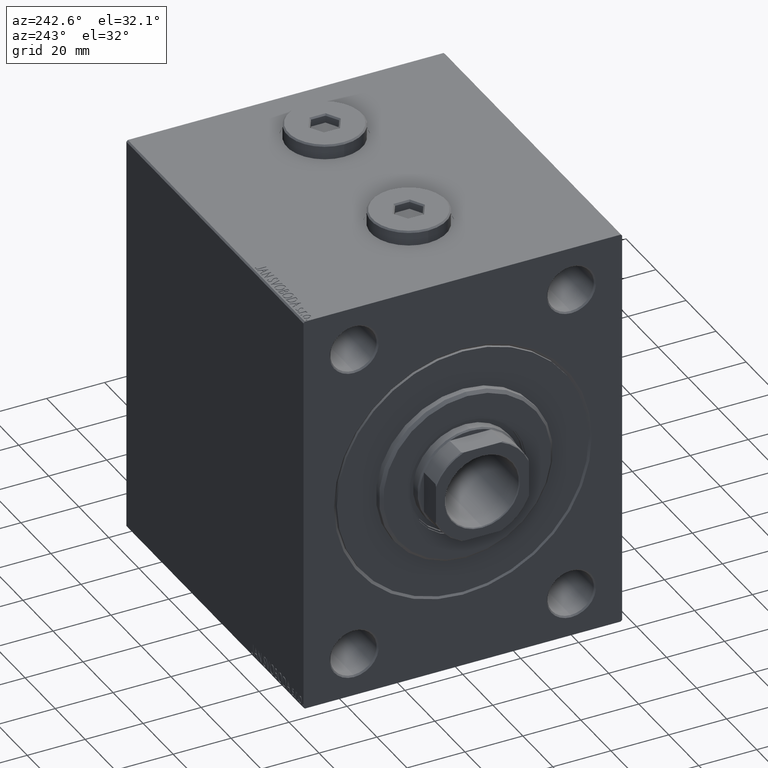
[diagram: clean part render]
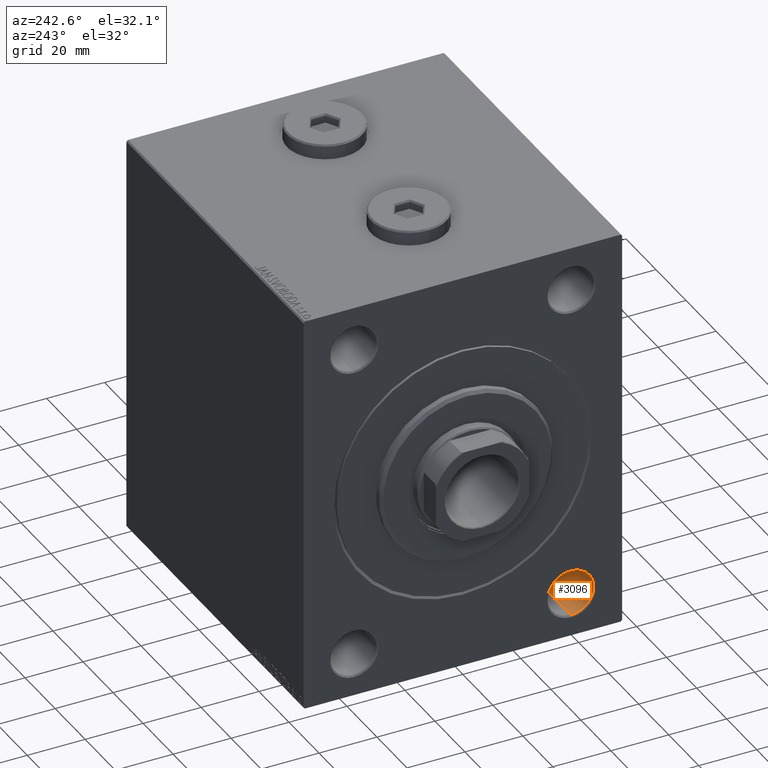
[diagram: same view with one face highlighted and labeled with its STEP entity id]
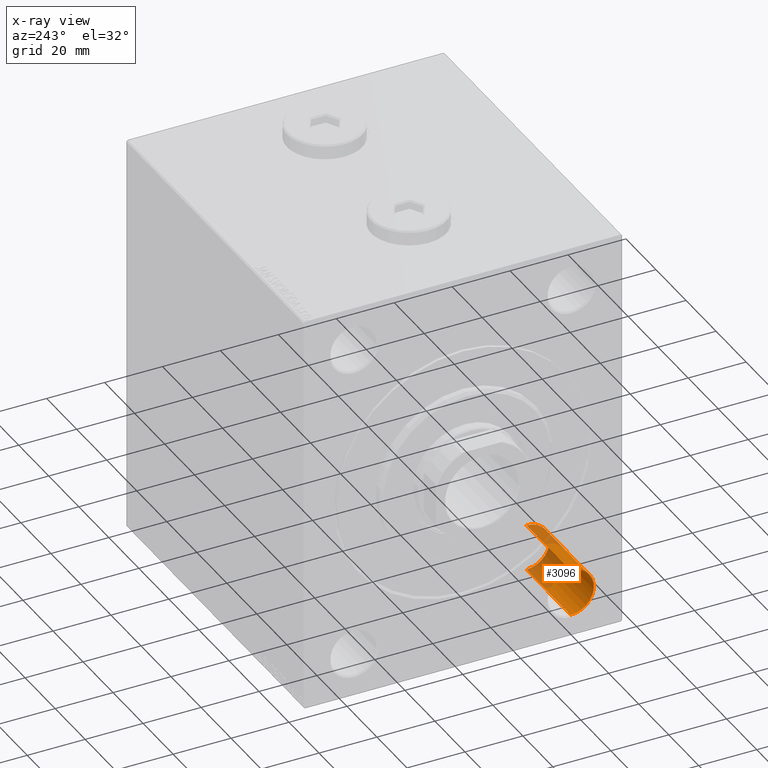
[diagram: x-ray of the same camera — body ghosted, the highlighted face saturated]
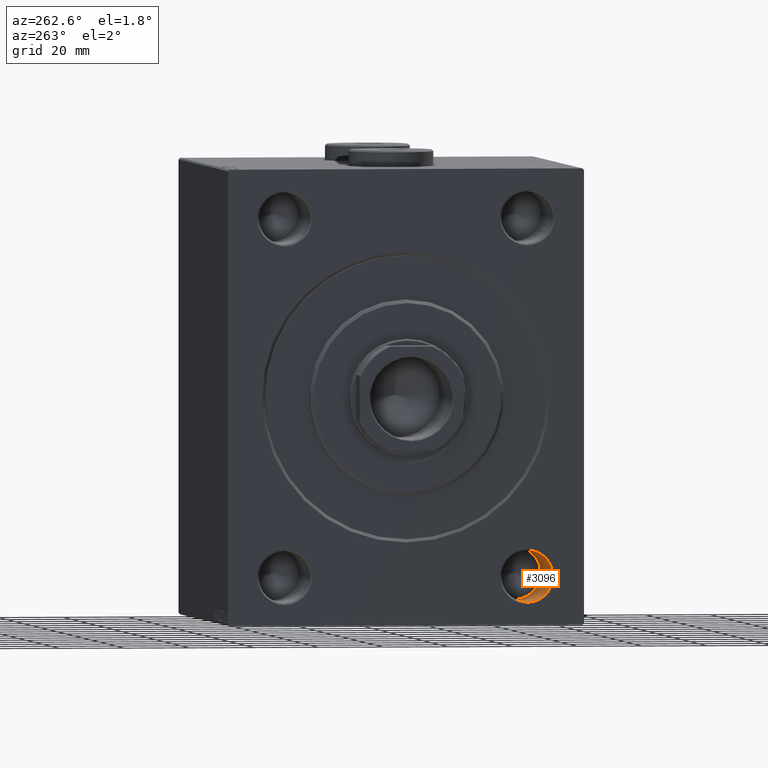
[diagram: same view with one face highlighted and labeled with its STEP entity id]
A machine part, auxiliary view. The second image highlights one B-rep face of the part: STEP entity #3096.
The next image is the same camera in x-ray: the body ghosted, the highlighted face saturated — about 38% of this face is hidden behind the body in this view.
A second angle (auxiliary view) of the same face is appended — the face is thin or edge-on in the first view.
In plain terms, the highlighted cylindrical surface (edge-blend (fillet) strip) has radius 8 mm, axis along (-1, -0, -0).
Its self-contained STEP definition (entity closure, byte-faithful):
#201 = DIRECTION ( 'NONE',  ( -1.000000000000000000, -0.000000000000000000, -0.000000000000000000 ) ) ;
#3096 = ADVANCED_FACE ( 'NONE', ( #42077 ), #31714, .F. ) ;
#3880 = DIRECTION ( 'NONE',  ( 0.000000000000000000, 0.000000000000000000, 1.000000000000000000 ) ) ;
#5336 = CIRCLE ( 'NONE', #25195, 7.999999999999992895 ) ;
#6958 = VECTOR ( 'NONE', #22902, 1000.000000000000000 ) ;
#7362 = VERTEX_POINT ( 'NONE', #11000 ) ;
#7784 = CARTESIAN_POINT ( 'NONE',  ( 0.000000000000000000, -37.49999999999999289, -54.99999999999999289 ) ) ;
#8030 = DIRECTION ( 'NONE',  ( -1.000000000000000000, -0.000000000000000000, -0.000000000000000000 ) ) ;
#10967 = LINE ( 'NONE', #25005, #6958 ) ;
#11000 = CARTESIAN_POINT ( 'NONE',  ( 0.5000000000000125455, -37.49999999999999289, -47.00000000000000000 ) ) ;
#11534 = EDGE_CURVE ( 'NONE', #30132, #41168, #10967, .T. ) ;
#12762 = EDGE_CURVE ( 'NONE', #41168, #7362, #14344, .T. ) ;
#14344 = CIRCLE ( 'NONE', #22427, 7.999999999999992895 ) ;
#14483 = CARTESIAN_POINT ( 'NONE',  ( 30.00000000000000000, -37.49999999999999289, -54.99999999999999289 ) ) ;
#15951 = CARTESIAN_POINT ( 'NONE',  ( 0.5000000000000125455, -37.49999999999999289, -62.99999999999998579 ) ) ;
#17606 = ORIENTED_EDGE ( 'NONE', *, *, #40319, .F. ) ;
#17644 = VECTOR ( 'NONE', #39296, 1000.000000000000000 ) ;
#22427 = AXIS2_PLACEMENT_3D ( 'NONE', #31114, #31337, #24451 ) ;
#22496 = LINE ( 'NONE', #29163, #17644 ) ;
#22902 = DIRECTION ( 'NONE',  ( -1.000000000000000000, -0.000000000000000000, -0.000000000000000000 ) ) ;
#24451 = DIRECTION ( 'NONE',  ( 0.000000000000000000, 0.000000000000000000, -1.000000000000000000 ) ) ;
#25005 = CARTESIAN_POINT ( 'NONE',  ( 0.000000000000000000, -37.49999999999999289, -62.99999999999998579 ) ) ;
#25121 = AXIS2_PLACEMENT_3D ( 'NONE', #7784, #201, #3880 ) ;
#25195 = AXIS2_PLACEMENT_3D ( 'NONE', #14483, #8030, #42542 ) ;
#27204 = ORIENTED_EDGE ( 'NONE', *, *, #12762, .T. ) ;
#29163 = CARTESIAN_POINT ( 'NONE',  ( 0.000000000000000000, -37.49999999999999289, -47.00000000000000000 ) ) ;
#29379 = EDGE_CURVE ( 'NONE', #37604, #7362, #22496, .T. ) ;
#29577 = CARTESIAN_POINT ( 'NONE',  ( 30.00000000000000000, -37.49999999999999289, -62.99999999999998579 ) ) ;
#30132 = VERTEX_POINT ( 'NONE', #29577 ) ;
#31114 = CARTESIAN_POINT ( 'NONE',  ( 0.5000000000000125455, -37.49999999999999289, -54.99999999999999289 ) ) ;
#31337 = DIRECTION ( 'NONE',  ( -1.000000000000000000, 0.000000000000000000, 0.000000000000000000 ) ) ;
#31714 = CYLINDRICAL_SURFACE ( 'NONE', #25121, 7.999999999999992895 ) ;
#33023 = ORIENTED_EDGE ( 'NONE', *, *, #11534, .T. ) ;
#35262 = EDGE_LOOP ( 'NONE', ( #17606, #33023, #27204, #41728 ) ) ;
#37604 = VERTEX_POINT ( 'NONE', #38778 ) ;
#38778 = CARTESIAN_POINT ( 'NONE',  ( 30.00000000000000000, -37.49999999999999289, -47.00000000000000000 ) ) ;
#39296 = DIRECTION ( 'NONE',  ( -1.000000000000000000, -0.000000000000000000, -0.000000000000000000 ) ) ;
#40319 = EDGE_CURVE ( 'NONE', #30132, #37604, #5336, .T. ) ;
#41168 = VERTEX_POINT ( 'NONE', #15951 ) ;
#41728 = ORIENTED_EDGE ( 'NONE', *, *, #29379, .F. ) ;
#42077 = FACE_OUTER_BOUND ( 'NONE', #35262, .T. ) ;
#42542 = DIRECTION ( 'NONE',  ( 0.000000000000000000, 0.000000000000000000, 1.000000000000000000 ) ) ;